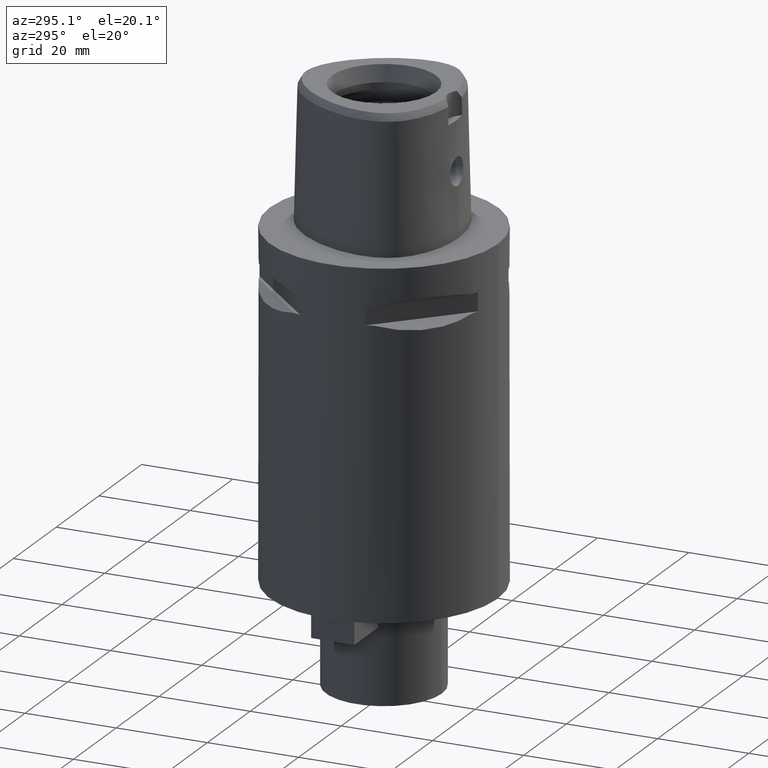
[diagram: clean part render]
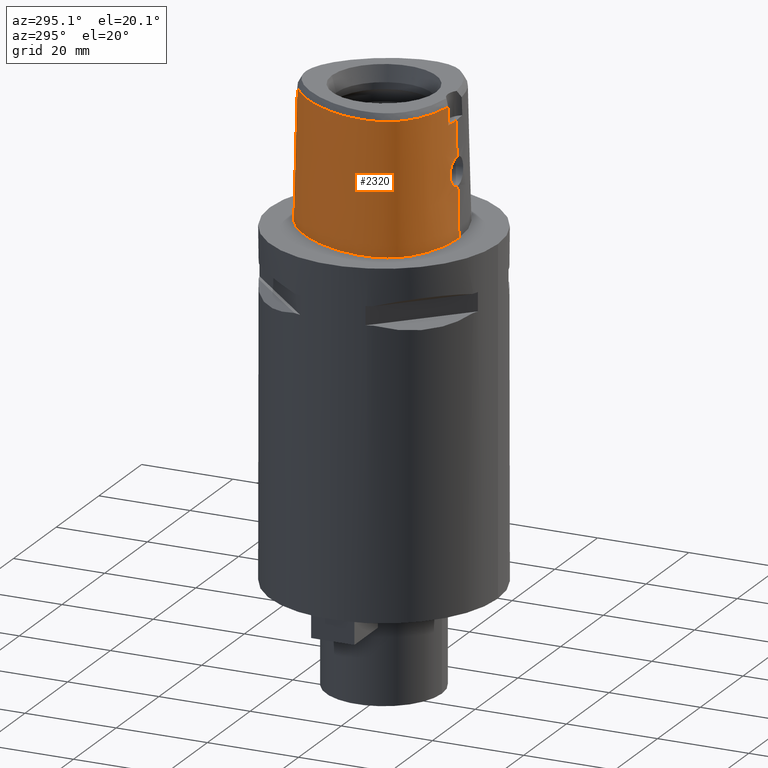
[diagram: same view with one face highlighted and labeled with its STEP entity id]
A machine part, auxiliary view. The second image highlights one B-rep face of the part: STEP entity #2320.
In plain terms, the highlighted face is a freeform B-spline surface patch.
Its self-contained STEP definition (entity closure, byte-faithful):
#185=CARTESIAN_POINT('',(-3.168920966623E0,-1.555911077539E1,2.852071192347E1));
#186=CARTESIAN_POINT('',(-3.881754785809E0,-1.547602733172E1,2.852068052687E1));
#187=CARTESIAN_POINT('',(-5.244396403955E0,-1.525906620001E1,2.852072900543E1));
#188=CARTESIAN_POINT('',(-7.075566005394E0,-1.481361054578E1,2.852071222184E1));
#189=CARTESIAN_POINT('',(-8.629939358093E0,-1.430437637349E1,2.852073003365E1));
#190=CARTESIAN_POINT('',(-1.001799044693E1,-1.372893046143E1,2.852071199054E1));
#191=CARTESIAN_POINT('',(-1.128054206278E1,-1.307962885736E1,2.852071972224E1));
#192=CARTESIAN_POINT('',(-1.241313031080E1,-1.236260258176E1,2.852071674343E1));
#193=CARTESIAN_POINT('',(-1.337792395495E1,-1.161473234948E1,2.852072260134E1));
#194=CARTESIAN_POINT('',(-1.418629755347E1,-1.085179979727E1,2.852072162069E1));
#195=CARTESIAN_POINT('',(-1.486105423532E1,-1.007347979386E1,2.852069316902E1));
#196=CARTESIAN_POINT('',(-1.541577323098E1,-9.284014900957E0,2.852074653998E1));
#197=CARTESIAN_POINT('',(-1.587497930988E1,-8.459363495973E0,2.852072074612E1));
#198=CARTESIAN_POINT('',(-1.626136497651E1,-7.557011269555E0,2.852071146268E1));
#199=CARTESIAN_POINT('',(-1.657551007244E1,-6.552569195713E0,2.852071884364E1));
#200=CARTESIAN_POINT('',(-1.680642796990E1,-5.436473871358E0,2.852071934821E1));
#201=CARTESIAN_POINT('',(-1.694145799089E1,-4.186683821143E0,2.852072142480E1));
#202=CARTESIAN_POINT('',(-1.696019950791E1,-2.815037232041E0,2.852071770770E1));
#203=CARTESIAN_POINT('',(-1.685379150643E1,-1.375946900334E0,2.852071128510E1));
#204=CARTESIAN_POINT('',(-1.661964866241E1,1.351304941085E-1,2.852072415014E1));
#205=CARTESIAN_POINT('',(-1.623464754056E1,1.784626886727E0,2.852072247927E1));
#206=CARTESIAN_POINT('',(-1.563853932525E1,3.656002498720E0,2.852069864740E1));
#207=CARTESIAN_POINT('',(-1.483179287161E1,5.615314384142E0,2.852072718802E1));
#208=CARTESIAN_POINT('',(-1.384541574462E1,7.555532223802E0,2.852068859731E1));
#209=CARTESIAN_POINT('',(-1.270206905580E1,9.422218927671E0,2.852072874109E1));
#210=CARTESIAN_POINT('',(-1.144238009920E1,1.115445034539E1,2.852071274711E1));
#211=CARTESIAN_POINT('',(-1.011240238676E1,1.270061799735E1,2.852071993853E1));
#212=CARTESIAN_POINT('',(-8.843862668858E0,1.395404743947E1,2.852071231440E1));
#213=CARTESIAN_POINT('',(-7.648731354469E0,1.496850993225E1,2.852072051199E1));
#214=CARTESIAN_POINT('',(-6.447877252108E0,1.583587922237E1,2.852071691316E1));
#215=CARTESIAN_POINT('',(-5.251392323932E0,1.655335719535E1,2.852072794750E1));
#216=CARTESIAN_POINT('',(-4.086638172350E0,1.711476409225E1,2.852071370270E1));
#217=CARTESIAN_POINT('',(-2.980042762420E0,1.752279479089E1,2.852072597148E1));
#218=CARTESIAN_POINT('',(-1.935859173261E0,1.779518916291E1,2.852074466143E1));
#219=CARTESIAN_POINT('',(-9.402899248914E-1,1.794963394544E1,2.852060033294E1));
#220=CARTESIAN_POINT('',(-3.147995063934E-1,1.798202997910E1,2.852071728568E1));
#221=CARTESIAN_POINT('',(-3.094719227474E-11,1.798202997910E1,
2.852071728569E1));
#233=CARTESIAN_POINT('',(-3.168920966623E0,-1.555911077539E1,2.852071192347E1));
#234=CARTESIAN_POINT('',(-3.176474039100E0,-1.556891666509E1,2.809611645937E1));
#235=CARTESIAN_POINT('',(-3.191280249308E0,-1.558832444513E1,2.724696144168E1));
#236=CARTESIAN_POINT('',(-3.213330813519E0,-1.561778410051E1,2.597339362925E1));
#237=CARTESIAN_POINT('',(-3.227943724850E0,-1.563768160294E1,2.512445079602E1));
#238=CARTESIAN_POINT('',(-3.235096612069E0,-1.564751802487E1,2.47E1));
#243=DIRECTION('',(-2.653059661623E-8,-2.499217453618E-2,-9.996876468237E-1));
#244=VECTOR('',#243,7.652390309446E0);
#245=CARTESIAN_POINT('',(2.030224829794E-7,-1.583752876601E1,2.470000006103E1));
#246=LINE('',#245,#244);
#250=CARTESIAN_POINT('',(0.E0,-1.602877864024E1,1.705E1));
#251=CARTESIAN_POINT('',(-2.659945477313E-1,-1.602877864024E1,1.705E1));
#252=CARTESIAN_POINT('',(-7.981539054079E-1,-1.602276557434E1,
1.697998778210E1));
#253=CARTESIAN_POINT('',(-1.542337742672E0,-1.599859727103E1,1.667189267474E1));
#254=CARTESIAN_POINT('',(-2.182298091955E0,-1.596711682406E1,1.618082016301E1));
#255=CARTESIAN_POINT('',(-2.673120543223E0,-1.593921850387E1,1.554028257757E1));
#256=CARTESIAN_POINT('',(-2.980687782776E0,-1.592573160843E1,1.479556193386E1));
#257=CARTESIAN_POINT('',(-3.084822898489E0,-1.593407648873E1,1.399796112571E1));
#258=CARTESIAN_POINT('',(-2.980017946408E0,-1.596586743653E1,1.320269542640E1));
#259=CARTESIAN_POINT('',(-2.672701220911E0,-1.601665099738E1,1.245917485553E1));
#260=CARTESIAN_POINT('',(-2.182455128889E0,-1.607648409626E1,1.181929354118E1));
#261=CARTESIAN_POINT('',(-1.541258646605E0,-1.613247596370E1,1.132732424473E1));
#262=CARTESIAN_POINT('',(-7.963106898856E-1,-1.617186122197E1,
1.101956686934E1));
#263=CARTESIAN_POINT('',(-2.651805195317E-1,-1.618126839359E1,1.095E1));
#264=CARTESIAN_POINT('',(-2.149496932727E-12,-1.618126839359E1,1.095E1));
#269=DIRECTION('',(-1.379466824857E-12,-2.499051295372E-2,-9.996876883619E-1));
#270=VECTOR('',#269,1.095342088082E1);
#271=CARTESIAN_POINT('',(-2.149496932727E-12,-1.618126839359E1,1.095E1));
#272=LINE('',#271,#270);
#334=CARTESIAN_POINT('',(7.243243713352E-11,1.869499999998E1,
1.586508702189E-13));
#335=CARTESIAN_POINT('',(-3.295346810893E-1,1.869499999998E1,
1.586508702189E-13));
#336=CARTESIAN_POINT('',(-1.002816635253E0,1.866092054673E1,
-7.363012511162E-14));
#337=CARTESIAN_POINT('',(-2.051467965772E0,1.849994924685E1,
1.972913256226E-14));
#338=CARTESIAN_POINT('',(-3.150626846185E0,1.821717389381E1,0.E0));
#339=CARTESIAN_POINT('',(-4.305359233640E0,1.779689853106E1,0.E0));
#340=CARTESIAN_POINT('',(-5.520100199623E0,1.721982803341E1,0.E0));
#341=CARTESIAN_POINT('',(-6.794937412297E0,1.646416359564E1,0.E0));
#342=CARTESIAN_POINT('',(-8.123433265851E0,1.550821377042E1,0.E0));
#343=CARTESIAN_POINT('',(-9.490312704232E0,1.433410498861E1,0.E0));
#344=CARTESIAN_POINT('',(-1.086790097666E1,1.293503111676E1,0.E0));
#345=CARTESIAN_POINT('',(-1.221778655090E1,1.132001999159E1,0.E0));
#346=CARTESIAN_POINT('',(-1.349084322155E1,9.522442827619E0,0.E0));
#347=CARTESIAN_POINT('',(-1.463800236197E1,7.595790897107E0,0.E0));
#348=CARTESIAN_POINT('',(-1.562087341270E1,5.601657312162E0,0.E0));
#349=CARTESIAN_POINT('',(-1.641266421024E1,3.609501386790E0,0.E0));
#350=CARTESIAN_POINT('',(-1.700306591915E1,1.683406591524E0,0.E0));
#351=CARTESIAN_POINT('',(-1.739894003460E1,-1.317626643431E-1,0.E0));
#352=CARTESIAN_POINT('',(-1.761776091664E1,-1.809452524718E0,0.E0));
#353=CARTESIAN_POINT('',(-1.768211304797E1,-3.341239490188E0,0.E0));
#354=CARTESIAN_POINT('',(-1.761463184734E1,-4.728736750790E0,0.E0));
#355=CARTESIAN_POINT('',(-1.743534810294E1,-5.981912765486E0,0.E0));
#356=CARTESIAN_POINT('',(-1.716056200202E1,-7.113161076556E0,0.E0));
#357=CARTESIAN_POINT('',(-1.680106263466E1,-8.137911188621E0,0.E0));
#358=CARTESIAN_POINT('',(-1.636756055432E1,-9.063696987537E0,0.E0));
#359=CARTESIAN_POINT('',(-1.585123900430E1,-9.923298598890E0,0.E0));
#360=CARTESIAN_POINT('',(-1.523006211388E1,-1.075326457979E1,0.E0));
#361=CARTESIAN_POINT('',(-1.447882279527E1,-1.157177837007E1,0.E0));
#362=CARTESIAN_POINT('',(-1.358842904800E1,-1.236840798336E1,0.E0));
#363=CARTESIAN_POINT('',(-1.253815877430E1,-1.314166350474E1,0.E0));
#364=CARTESIAN_POINT('',(-1.130916580395E1,-1.388179589433E1,0.E0));
#365=CARTESIAN_POINT('',(-9.884102085376E0,-1.457442885709E1,0.E0));
#366=CARTESIAN_POINT('',(-8.252387795220E0,-1.519907079270E1,0.E0));
#367=CARTESIAN_POINT('',(-6.415180332125E0,-1.572992406774E1,0.E0));
#368=CARTESIAN_POINT('',(-4.394992750878E0,-1.613813899971E1,
1.987639923872E-14));
#369=CARTESIAN_POINT('',(-2.229291629210E0,-1.639615450772E1,
-7.417973183044E-14));
#370=CARTESIAN_POINT('',(-7.521880088880E-1,-1.6455E1,1.598351081119E-13));
#371=CARTESIAN_POINT('',(-1.725937765651E-11,-1.6455E1,1.598351081119E-13));
#895=DIRECTION('',(3.623588485236E-12,2.499051285797E-2,-9.996876883643E-1));
#896=VECTOR('',#895,2.852962742029E1);
#897=CARTESIAN_POINT('',(-3.094719227474E-11,1.798202997910E1,
2.852071728569E1));
#898=LINE('',#897,#896);
#912=CARTESIAN_POINT('',(2.030224829794E-7,-1.583752876601E1,2.470000006103E1));
#913=CARTESIAN_POINT('',(-3.604657533404E-1,-1.583752876587E1,
2.470000006103E1));
#914=CARTESIAN_POINT('',(-1.080736565087E0,-1.582371258234E1,2.469999997152E1));
#915=CARTESIAN_POINT('',(-2.160152508818E0,-1.576019554973E1,2.470000000814E1));
#916=CARTESIAN_POINT('',(-2.877122210813E0,-1.568999562894E1,2.47E1));
#917=CARTESIAN_POINT('',(-3.235096612069E0,-1.564751802487E1,2.47E1));
#1533=CARTESIAN_POINT('',(-3.235121119989E0,-1.564755630482E1,2.47E1));
#1534=VERTEX_POINT('',#1533);
#1535=VERTEX_POINT('',#233);
#1536=CARTESIAN_POINT('',(-3.094719227474E-11,1.798202997910E1,
2.852071728569E1));
#1537=VERTEX_POINT('',#1536);
#1538=VERTEX_POINT('',#334);
#1539=VERTEX_POINT('',#371);
#1540=VERTEX_POINT('',#912);
#1541=CARTESIAN_POINT('',(0.E0,-1.602877864024E1,1.705E1));
#1542=VERTEX_POINT('',#1541);
#1543=VERTEX_POINT('',#264);
#2207=CARTESIAN_POINT('',(5.756361491127E-1,1.869183959967E1,
-5.704146800779E-1));
#2208=CARTESIAN_POINT('',(5.606135752158E-1,1.844514042115E1,9.316773107939E0));
#2209=CARTESIAN_POINT('',(5.455910013189E-1,1.819844124263E1,1.920396089595E1));
#2210=CARTESIAN_POINT('',(5.305684274220E-1,1.795174206412E1,2.909114868397E1));
#2211=CARTESIAN_POINT('',(3.838142946085E-1,1.870350312471E1,
-5.704146800779E-1));
#2212=CARTESIAN_POINT('',(3.738602559367E-1,1.845648976857E1,9.316773107939E0));
#2213=CARTESIAN_POINT('',(3.639062172648E-1,1.820947641243E1,1.920396089595E1));
#2214=CARTESIAN_POINT('',(3.539521785930E-1,1.796246305629E1,2.909114868397E1));
#2215=CARTESIAN_POINT('',(-4.893119563415E-1,1.872969240739E1,
-5.704146800779E-1));
#2216=CARTESIAN_POINT('',(-4.764648012280E-1,1.848199782563E1,
9.316773107939E0));
#2217=CARTESIAN_POINT('',(-4.636176461146E-1,1.823430324387E1,
1.920396089595E1));
#2218=CARTESIAN_POINT('',(-4.507704910012E-1,1.798660866210E1,
2.909114868397E1));
#2219=CARTESIAN_POINT('',(-2.043508292970E0,1.856419796944E1,
-5.704146800779E-1));
#2220=CARTESIAN_POINT('',(-1.992618747716E0,1.832080816581E1,9.316773107939E0));
#2221=CARTESIAN_POINT('',(-1.941729202461E0,1.807741836219E1,1.920396089595E1));
#2222=CARTESIAN_POINT('',(-1.890839657207E0,1.783402855856E1,2.909114868397E1));
#2223=CARTESIAN_POINT('',(-4.735056264450E0,1.774784407893E1,
-5.704146800779E-1));
#2224=CARTESIAN_POINT('',(-4.628819265465E0,1.752182796086E1,9.316773107939E0));
#2225=CARTESIAN_POINT('',(-4.522582266480E0,1.729581184279E1,1.920396089595E1));
#2226=CARTESIAN_POINT('',(-4.416345267496E0,1.706979572473E1,2.909114868397E1));
#2227=CARTESIAN_POINT('',(-7.976721801354E0,1.584201698576E1,
-5.704146800779E-1));
#2228=CARTESIAN_POINT('',(-7.822764757784E0,1.564591006597E1,9.316773107939E0));
#2229=CARTESIAN_POINT('',(-7.668807714214E0,1.544980314618E1,1.920396089595E1));
#2230=CARTESIAN_POINT('',(-7.514850670644E0,1.525369622639E1,2.909114868397E1));
#2231=CARTESIAN_POINT('',(-1.147659488471E1,1.246143684821E1,
-5.704146800779E-1));
#2232=CARTESIAN_POINT('',(-1.128662494035E1,1.230111481255E1,9.316773107939E0));
#2233=CARTESIAN_POINT('',(-1.109665499599E1,1.214079277690E1,1.920396089595E1));
#2234=CARTESIAN_POINT('',(-1.090668505162E1,1.198047074124E1,2.909114868397E1));
#2235=CARTESIAN_POINT('',(-1.439249255183E1,8.309508948486E0,
-5.704146800779E-1));
#2236=CARTESIAN_POINT('',(-1.417736239961E1,8.185312174722E0,9.316773107939E0));
#2237=CARTESIAN_POINT('',(-1.396223224738E1,8.061115400959E0,1.920396089595E1));
#2238=CARTESIAN_POINT('',(-1.374710209515E1,7.936918627195E0,2.909114868397E1));
#2239=CARTESIAN_POINT('',(-1.653021708532E1,3.708305584337E0,
-5.704146800779E-1));
#2240=CARTESIAN_POINT('',(-1.629641056837E1,3.623925455836E0,9.316773107939E0));
#2241=CARTESIAN_POINT('',(-1.606260405142E1,3.539545327335E0,1.920396089595E1));
#2242=CARTESIAN_POINT('',(-1.582879753447E1,3.455165198835E0,2.909114868397E1));
#2243=CARTESIAN_POINT('',(-1.751166498501E1,-2.260900529467E-1,
-5.704146800779E-1));
#2244=CARTESIAN_POINT('',(-1.726695537817E1,-2.694874685372E-1,
9.316773107939E0));
#2245=CARTESIAN_POINT('',(-1.702224577133E1,-3.128848841277E-1,
1.920396089595E1));
#2246=CARTESIAN_POINT('',(-1.677753616449E1,-3.562822997183E-1,
2.909114868397E1));
#2247=CARTESIAN_POINT('',(-1.772574105969E1,-3.269125760297E0,
-5.704146800779E-1));
#2248=CARTESIAN_POINT('',(-1.747781018908E1,-3.270737581817E0,
9.316773107939E0));
#2249=CARTESIAN_POINT('',(-1.722987931848E1,-3.272349403336E0,
1.920396089595E1));
#2250=CARTESIAN_POINT('',(-1.698194844787E1,-3.273961224855E0,
2.909114868397E1));
#2251=CARTESIAN_POINT('',(-1.757791639674E1,-5.458025465845E0,
-5.704146800779E-1));
#2252=CARTESIAN_POINT('',(-1.733218229497E1,-5.422849682868E0,
9.316773107939E0));
#2253=CARTESIAN_POINT('',(-1.708644819319E1,-5.387673899891E0,
1.920396089595E1));
#2254=CARTESIAN_POINT('',(-1.684071409142E1,-5.352498116914E0,
2.909114868397E1));
#2255=CARTESIAN_POINT('',(-1.717866842887E1,-7.169980044482E0,
-5.704146800779E-1));
#2256=CARTESIAN_POINT('',(-1.694089130375E1,-7.099401460956E0,
9.316773107939E0));
#2257=CARTESIAN_POINT('',(-1.670311417862E1,-7.028822877430E0,
1.920396089595E1));
#2258=CARTESIAN_POINT('',(-1.646533705349E1,-6.958244293904E0,
2.909114868397E1));
#2259=CARTESIAN_POINT('',(-1.668217932082E1,-8.451606616546E0,
-5.704146800779E-1));
#2260=CARTESIAN_POINT('',(-1.645596373069E1,-8.350972138082E0,
9.316773107939E0));
#2261=CARTESIAN_POINT('',(-1.622974814055E1,-8.250337659618E0,
1.920396089595E1));
#2262=CARTESIAN_POINT('',(-1.600353255041E1,-8.149703181153E0,
2.909114868397E1));
#2263=CARTESIAN_POINT('',(-1.621839714754E1,-9.363695958974E0,
-5.704146800779E-1));
#2264=CARTESIAN_POINT('',(-1.600394173059E1,-9.239880065912E0,
9.316773107939E0));
#2265=CARTESIAN_POINT('',(-1.578948631365E1,-9.116064172849E0,
1.920396089595E1));
#2266=CARTESIAN_POINT('',(-1.557503089671E1,-8.992248279787E0,
2.909114868397E1));
#2267=CARTESIAN_POINT('',(-1.566039569327E1,-1.022138777405E1,
-5.704146800779E-1));
#2268=CARTESIAN_POINT('',(-1.546013588096E1,-1.007579656555E1,
9.316773107939E0));
#2269=CARTESIAN_POINT('',(-1.525987606865E1,-9.930205357047E0,
1.920396089595E1));
#2270=CARTESIAN_POINT('',(-1.505961625634E1,-9.784614148548E0,
2.909114868397E1));
#2271=CARTESIAN_POINT('',(-1.479871907683E1,-1.129217324033E1,
-5.704146800779E-1));
#2272=CARTESIAN_POINT('',(-1.461870768112E1,-1.112154150167E1,
9.316773107939E0));
#2273=CARTESIAN_POINT('',(-1.443869628542E1,-1.095090976302E1,
1.920396089595E1));
#2274=CARTESIAN_POINT('',(-1.425868488972E1,-1.078027802436E1,
2.909114868397E1));
#2275=CARTESIAN_POINT('',(-1.351574691244E1,-1.249390941247E1,
-5.704146800779E-1));
#2276=CARTESIAN_POINT('',(-1.336241663345E1,-1.229868532553E1,
9.316773107939E0));
#2277=CARTESIAN_POINT('',(-1.320908635446E1,-1.210346123859E1,
1.920396089595E1));
#2278=CARTESIAN_POINT('',(-1.305575607547E1,-1.190823715164E1,
2.909114868397E1));
#2279=CARTESIAN_POINT('',(-1.169401646400E1,-1.371637917766E1,
-5.704146800779E-1));
#2280=CARTESIAN_POINT('',(-1.157144729578E1,-1.350085884825E1,
9.316773107939E0));
#2281=CARTESIAN_POINT('',(-1.144887812755E1,-1.328533851884E1,
1.920396089595E1));
#2282=CARTESIAN_POINT('',(-1.132630895933E1,-1.306981818943E1,
2.909114868397E1));
#2283=CARTESIAN_POINT('',(-8.951632340785E0,-1.505250171730E1,
-5.704146800779E-1));
#2284=CARTESIAN_POINT('',(-8.866858741049E0,-1.481887820087E1,
9.316773107939E0));
#2285=CARTESIAN_POINT('',(-8.782085141314E0,-1.458525468445E1,
1.920396089595E1));
#2286=CARTESIAN_POINT('',(-8.697311541578E0,-1.435163116803E1,
2.909114868397E1));
#2287=CARTESIAN_POINT('',(-5.053620743785E0,-1.616974068440E1,
-5.704146800779E-1));
#2288=CARTESIAN_POINT('',(-5.009809422773E0,-1.592506882147E1,
9.316773107939E0));
#2289=CARTESIAN_POINT('',(-4.965998101761E0,-1.568039695855E1,
1.920396089595E1));
#2290=CARTESIAN_POINT('',(-4.922186780749E0,-1.543572509563E1,
2.909114868397E1));
#2291=CARTESIAN_POINT('',(-1.321318947045E0,-1.650155084573E1,
-5.704146800779E-1));
#2292=CARTESIAN_POINT('',(-1.309813752271E0,-1.625411917783E1,
9.316773107939E0));
#2293=CARTESIAN_POINT('',(-1.298308557498E0,-1.600668750993E1,
1.920396089595E1));
#2294=CARTESIAN_POINT('',(-1.286803362725E0,-1.575925584204E1,
2.909114868397E1));
#2295=CARTESIAN_POINT('',(7.264497205358E-1,-1.646229665952E1,
-5.704146800779E-1));
#2296=CARTESIAN_POINT('',(7.201291707751E-1,-1.621519148523E1,
9.316773107939E0));
#2297=CARTESIAN_POINT('',(7.138086210144E-1,-1.596808631095E1,
1.920396089595E1));
#2298=CARTESIAN_POINT('',(7.074880712537E-1,-1.572098113666E1,
2.909114868397E1));
#2299=CARTESIAN_POINT('',(1.089046662257E0,-1.644835921872E1,
-5.704146800779E-1));
#2300=CARTESIAN_POINT('',(1.079551361408E0,-1.620136644767E1,9.316773107939E0));
#2301=CARTESIAN_POINT('',(1.070056060560E0,-1.595437367661E1,1.920396089595E1));
#2302=CARTESIAN_POINT('',(1.060560759712E0,-1.570738090555E1,2.909114868397E1));
#2303=B_SPLINE_SURFACE_WITH_KNOTS('',3,3,((#2207,#2208,#2209,#2210),(#2211,
#2212,#2213,#2214),(#2215,#2216,#2217,#2218),(#2219,#2220,#2221,#2222),(#2223,
#2224,#2225,#2226),(#2227,#2228,#2229,#2230),(#2231,#2232,#2233,#2234),(#2235,
#2236,#2237,#2238),(#2239,#2240,#2241,#2242),(#2243,#2244,#2245,#2246),(#2247,
#2248,#2249,#2250),(#2251,#2252,#2253,#2254),(#2255,#2256,#2257,#2258),(#2259,
#2260,#2261,#2262),(#2263,#2264,#2265,#2266),(#2267,#2268,#2269,#2270),(#2271,
#2272,#2273,#2274),(#2275,#2276,#2277,#2278),(#2279,#2280,#2281,#2282),(#2283,
#2284,#2285,#2286),(#2287,#2288,#2289,#2290),(#2291,#2292,#2293,#2294),(#2295,
#2296,#2297,#2298),(#2299,#2300,#2301,#2302)),.UNSPECIFIED.,.F.,.F.,.F.,(4,1,1,
1,1,1,1,1,1,1,1,1,1,1,1,1,1,1,1,1,1,4),(4,4),(-1.173812893898E-2,0.E0,
4.166666666809E-2,8.333333333469E-2,1.666666666679E-1,2.500000000011E-1,
3.333333333343E-1,4.166666666676E-1,5.000000000008E-1,5.416666666674E-1,
5.833333333340E-1,6.250000000006E-1,6.458333333339E-1,6.666666666672E-1,
6.875000000005E-1,7.083333333338E-1,7.500000000004E-1,7.916666666671E-1,
8.333333333336E-1,9.166666666669E-1,1.E0,1.017968513185E0),(2.115293867150E-9,
9.999998921200E-1),.UNSPECIFIED.);
#2305=ORIENTED_EDGE('',*,*,#2304,.F.);
#2307=ORIENTED_EDGE('',*,*,#2306,.F.);
#2308=ORIENTED_EDGE('',*,*,#2200,.F.);
#2309=ORIENTED_EDGE('',*,*,#1733,.T.);
#2311=ORIENTED_EDGE('',*,*,#2310,.F.);
#2313=ORIENTED_EDGE('',*,*,#2312,.T.);
#2315=ORIENTED_EDGE('',*,*,#2314,.T.);
#2317=ORIENTED_EDGE('',*,*,#2316,.T.);
#2318=EDGE_LOOP('',(#2305,#2307,#2308,#2309,#2311,#2313,#2315,#2317));
#2319=FACE_OUTER_BOUND('',#2318,.F.);
#222=B_SPLINE_CURVE_WITH_KNOTS('',3,(#185,#186,#187,#188,#189,#190,#191,#192,
#193,#194,#195,#196,#197,#198,#199,#200,#201,#202,#203,#204,#205,#206,#207,#208,
#209,#210,#211,#212,#213,#214,#215,#216,#217,#218,#219,#220,#221),.UNSPECIFIED.,
.F.,.F.,(4,1,1,1,1,1,1,1,1,1,1,1,1,1,1,1,1,1,1,1,1,1,1,1,1,1,1,1,1,1,1,1,1,1,4),
(0.E0,2.941176470588E-2,5.882352941176E-2,8.823529411765E-2,1.176470588235E-1,
1.470588235294E-1,1.764705882353E-1,2.058823529412E-1,2.352941176471E-1,
2.647058823529E-1,2.941176470588E-1,3.235294117647E-1,3.529411764706E-1,
3.823529411765E-1,4.117647058824E-1,4.411764705882E-1,4.705882352941E-1,5.E-1,
5.294117647059E-1,5.588235294118E-1,5.882352941176E-1,6.176470588235E-1,
6.470588235294E-1,6.764705882353E-1,7.058823529412E-1,7.352941176471E-1,
7.647058823529E-1,7.941176470588E-1,8.235294117647E-1,8.529411764706E-1,
8.823529411765E-1,9.117647058824E-1,9.411764705882E-1,9.705882352941E-1,1.E0),
.UNSPECIFIED.);
#239=B_SPLINE_CURVE_WITH_KNOTS('',3,(#233,#234,#235,#236,#237,#238),
.UNSPECIFIED.,.F.,.F.,(4,1,1,4),(0.E0,3.333333333333E-1,6.666666666667E-1,1.E0),
.UNSPECIFIED.);
#265=B_SPLINE_CURVE_WITH_KNOTS('',3,(#250,#251,#252,#253,#254,#255,#256,#257,
#258,#259,#260,#261,#262,#263,#264),.UNSPECIFIED.,.F.,.F.,(4,1,1,1,1,1,1,1,1,1,
1,1,4),(0.E0,8.333333333333E-2,1.666666666667E-1,2.5E-1,3.333333333333E-1,
4.166666666667E-1,5.E-1,5.833333333333E-1,6.666666666667E-1,7.5E-1,
8.333333333333E-1,9.166666666667E-1,1.E0),.UNSPECIFIED.);
#372=B_SPLINE_CURVE_WITH_KNOTS('',3,(#334,#335,#336,#337,#338,#339,#340,#341,
#342,#343,#344,#345,#346,#347,#348,#349,#350,#351,#352,#353,#354,#355,#356,#357,
#358,#359,#360,#361,#362,#363,#364,#365,#366,#367,#368,#369,#370,#371),
.UNSPECIFIED.,.F.,.F.,(4,1,1,1,1,1,1,1,1,1,1,1,1,1,1,1,1,1,1,1,1,1,1,1,1,1,1,1,
1,1,1,1,1,1,1,4),(0.E0,2.857142857143E-2,5.714285714286E-2,8.571428571429E-2,
1.142857142857E-1,1.428571428571E-1,1.714285714286E-1,2.E-1,2.285714285714E-1,
2.571428571429E-1,2.857142857143E-1,3.142857142857E-1,3.428571428571E-1,
3.714285714286E-1,4.E-1,4.285714285714E-1,4.571428571429E-1,4.857142857143E-1,
5.142857142857E-1,5.428571428571E-1,5.714285714286E-1,6.E-1,6.285714285714E-1,
6.571428571429E-1,6.857142857143E-1,7.142857142857E-1,7.428571428571E-1,
7.714285714286E-1,8.E-1,8.285714285714E-1,8.571428571429E-1,8.857142857143E-1,
9.142857142857E-1,9.428571428571E-1,9.714285714286E-1,1.E0),.UNSPECIFIED.);
#918=B_SPLINE_CURVE_WITH_KNOTS('',3,(#912,#913,#914,#915,#916,#917),
.UNSPECIFIED.,.F.,.F.,(4,1,1,4),(0.E0,3.333333333333E-1,6.666666666667E-1,1.E0),
.UNSPECIFIED.);
#1733=EDGE_CURVE('',#1535,#1534,#239,.T.);
#2200=EDGE_CURVE('',#1535,#1537,#222,.T.);
#2304=EDGE_CURVE('',#1538,#1539,#372,.T.);
#2306=EDGE_CURVE('',#1537,#1538,#898,.T.);
#2310=EDGE_CURVE('',#1540,#1534,#918,.T.);
#2312=EDGE_CURVE('',#1540,#1542,#246,.T.);
#2314=EDGE_CURVE('',#1542,#1543,#265,.T.);
#2316=EDGE_CURVE('',#1543,#1539,#272,.T.);
#2320=ADVANCED_FACE('',(#2319),#2303,.T.);